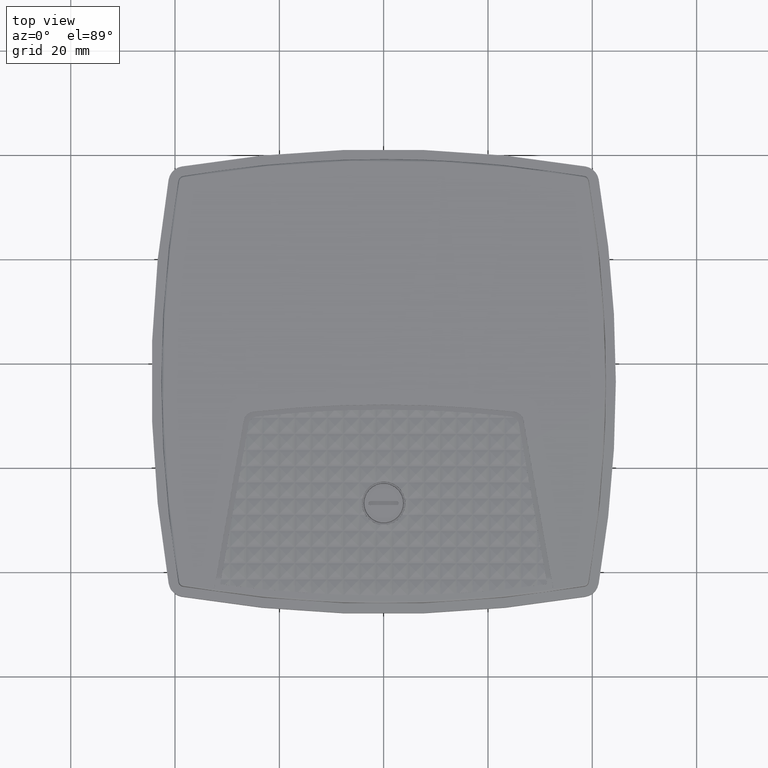
[diagram: clean part render]
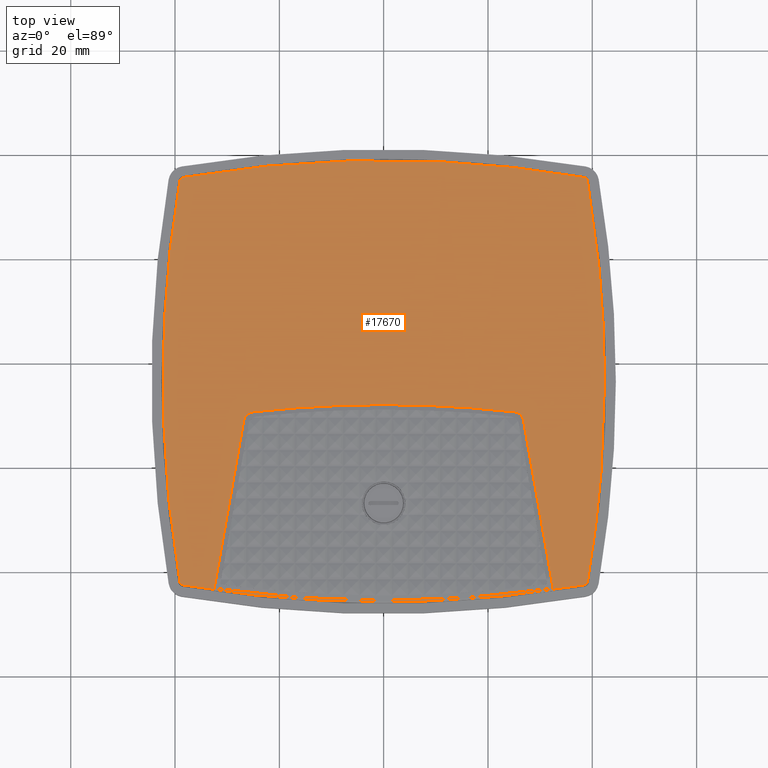
[diagram: same view with one face highlighted and labeled with its STEP entity id]
A machine part, top view. The second image highlights one B-rep face of the part: STEP entity #17670.
In plain terms, the highlighted planar face has unit normal (0, 0, 1).
Its self-contained STEP definition (entity closure, byte-faithful):
#5 = CARTESIAN_POINT ( 'NONE',  ( -1.538086690359461883, -0.9002733711386193827, 0.2480314960629921295 ) ) ;
#96 = DIRECTION ( 'NONE',  ( -0.000000000000000000, -0.000000000000000000, -1.000000000000000000 ) ) ;
#322 = EDGE_CURVE ( 'NONE', #19372, #24321, #20301, .T. ) ;
#395 = CARTESIAN_POINT ( 'NONE',  ( -1.513043256608206821, -0.9240426557318976997, 0.2480314960629921295 ) ) ;
#841 = CARTESIAN_POINT ( 'NONE',  ( 1.538262067971029712, -0.8987362376238721140, 0.2480314960629921295 ) ) ;
#869 = CARTESIAN_POINT ( 'NONE',  ( 1.524599566063387091, 2.148031616365099872, 0.2480314960629921295 ) ) ;
#1189 = CARTESIAN_POINT ( 'NONE',  ( 1.538262067971029712, -0.8987362376238721140, 0.2480314960629921295 ) ) ;
#1229 = CARTESIAN_POINT ( 'NONE',  ( -1.538349674716228410, -0.8987362376238681172, 0.2480314960629921295 ) ) ;
#1265 = CARTESIAN_POINT ( 'NONE',  ( -1.534662256077697240, 2.137515383095199617, 0.2480314960629921572 ) ) ;
#1558 = CARTESIAN_POINT ( 'NONE',  ( -1.514580390122972187, 2.152306102598596560, 0.2480314960629921295 ) ) ;
#1850 = EDGE_CURVE ( 'NONE', #24321, #19536, #27933, .T. ) ;
#1869 = LINE ( 'NONE', #27387, #7575 ) ;
#2088 = CARTESIAN_POINT ( 'NONE',  ( -1.279343536321206898, -0.9494611592462400829, 0.2480314960629921295 ) ) ;
#2423 = CARTESIAN_POINT ( 'NONE',  ( -1.523295970856013426, -0.9203552370934051652, 0.2480314960629921295 ) ) ;
#2563 = ORIENTED_EDGE ( 'NONE', *, *, #26536, .T. ) ;
#2740 = CARTESIAN_POINT ( 'NONE',  ( -1.516131443179829841, -0.9235143055584615901, 0.2480314960629921295 ) ) ;
#2872 = DIRECTION ( 'NONE',  ( 8.881780635371550939E-16, 1.000000000000000000, -3.802492172072922362E-18 ) ) ;
#2888 = EDGE_CURVE ( 'NONE', #9966, #17729, #15155, .T. ) ;
#3073 = ORIENTED_EDGE ( 'NONE', *, *, #14389, .T. ) ;
#3130 = CARTESIAN_POINT ( 'NONE',  ( 1.533869064078970723, 2.138981890455603718, 0.2480314960629922127 ) ) ;
#3201 = ORIENTED_EDGE ( 'NONE', *, *, #16886, .F. ) ;
#3236 = CARTESIAN_POINT ( 'NONE',  ( 1.623822172103477568, 1.627167130059621547, 0.2480314960629921572 ) ) ;
#3415 = CARTESIAN_POINT ( 'NONE',  ( 1.536653383795710148, 2.133236102522862332, 0.2480314960629920740 ) ) ;
#3427 =( BOUNDED_CURVE ( )  B_SPLINE_CURVE ( 3, ( #1229, #19660, #28865, #17375 ),
 .UNSPECIFIED., .F., .F. ) 
 B_SPLINE_CURVE_WITH_KNOTS ( ( 4, 4 ),
 ( 0.000000000000000000, 1.000000000000000000 ),
 .UNSPECIFIED. ) 
 CURVE ( )  GEOMETRIC_REPRESENTATION_ITEM ( )  RATIONAL_B_SPLINE_CURVE ( ( 1.000000000000000000, 0.9904521230345616489, 0.9904521230345616489, 1.000000000000000000 ) ) 
 REPRESENTATION_ITEM ( '' )  );
#3707 = ORIENTED_EDGE ( 'NONE', *, *, #24017, .F. ) ;
#3875 = CARTESIAN_POINT ( 'NONE',  ( 1.279255929576003981, -0.9494611592462420813, 0.2480314960629921295 ) ) ;
#4276 = CARTESIAN_POINT ( 'NONE',  ( 1.512955649863009899, -0.9240426557318976997, 0.2480314960629921295 ) ) ;
#4356 = CARTESIAN_POINT ( 'NONE',  ( 1.538262067971029712, 2.127262668847338389, 0.2480314960629921295 ) ) ;
#4579 = CARTESIAN_POINT ( 'NONE',  ( 1.538262067971029712, -0.8987362376238721140, 0.2480314960629921295 ) ) ;
#4696 = CARTESIAN_POINT ( 'NONE',  ( -1.537712356653046175, -0.9017754845766758898, 0.2480314960629921017 ) ) ;
#4839 = CARTESIAN_POINT ( 'NONE',  ( -1.524687172808461444, -0.9195051851417579414, 0.2480314960629921572 ) ) ;
#5192 = VERTEX_POINT ( 'NONE', #4356 ) ;
#5213 = VERTEX_POINT ( 'NONE', #16593 ) ;
#5690 = CARTESIAN_POINT ( 'NONE',  ( 1.531944591615174378, 2.141626866612784674, 0.2480314960629921295 ) ) ;
#5774 = EDGE_CURVE ( 'NONE', #19536, #26515, #10657, .T. ) ;
#6014 = CARTESIAN_POINT ( 'NONE',  ( 1.666756223750262889, 0.6142632156117342479, 0.2480314960629921295 ) ) ;
#6184 = CARTESIAN_POINT ( 'NONE',  ( -0.5092386845278162877, 2.324307519023802726, 0.2480314960629921295 ) ) ;
#6568 = ORIENTED_EDGE ( 'NONE', *, *, #5774, .T. ) ;
#6629 = DIRECTION ( 'NONE',  ( 0.000000000000000000, 0.000000000000000000, 1.000000000000000000 ) ) ;
#6694 = CARTESIAN_POINT ( 'NONE',  ( -1.538349674716226412, 2.127262668847342830, 0.2480314960629921295 ) ) ;
#6793 = CARTESIAN_POINT ( 'NONE',  ( -4.380337259962101829E-05, -8.543217099348899168, 0.2480314960629736165 ) ) ;
#7118 = CARTESIAN_POINT ( 'NONE',  ( -1.536740990540908625, -0.9047096712993929479, 0.2480314960629920740 ) ) ;
#7216 = AXIS2_PLACEMENT_3D ( 'NONE', #21124, #14002, #9940 ) ;
#7480 = CIRCLE ( 'NONE', #24338, 0.07887758846900577714 ) ;
#7575 = VECTOR ( 'NONE', #23163, 39.37007874015748143 ) ;
#7761 = CARTESIAN_POINT ( 'NONE',  ( 1.666756223750262889, 0.6142632156117342479, 0.2480314960629921295 ) ) ;
#7913 = CARTESIAN_POINT ( 'NONE',  ( -1.527407454373561402, 2.146251610599575255, 0.2480314960629921017 ) ) ;
#8068 = CARTESIAN_POINT ( 'NONE',  ( -1.533812204126027590, 2.138906585047674280, 0.2480314960629921572 ) ) ;
#8202 = CARTESIAN_POINT ( 'NONE',  ( -1.530878390023239000, 2.142785430268938196, 0.2480314960629920740 ) ) ;
#8343 = VECTOR ( 'NONE', #26562, 39.37007874015748854 ) ;
#8631 =( BOUNDED_CURVE ( )  B_SPLINE_CURVE ( 3, ( #4579, #11534, #24813, #4276 ),
 .UNSPECIFIED., .F., .F. ) 
 B_SPLINE_CURVE_WITH_KNOTS ( ( 4, 4 ),
 ( 0.000000000000000000, 1.000000000000000000 ),
 .UNSPECIFIED. ) 
 CURVE ( )  GEOMETRIC_REPRESENTATION_ITEM ( )  RATIONAL_B_SPLINE_CURVE ( ( 1.000000000000000000, 0.8774828397883003284, 0.8774828397883003284, 1.000000000000000000 ) ) 
 REPRESENTATION_ITEM ( '' )  );
#8903 = AXIS2_PLACEMENT_3D ( 'NONE', #22754, #96, #27287 ) ;
#9047 = CARTESIAN_POINT ( 'NONE',  ( -1.513043256608202602, 2.152569086955362199, 0.2480314960629921295 ) ) ;
#9727 = ORIENTED_EDGE ( 'NONE', *, *, #1850, .T. ) ;
#9940 = DIRECTION ( 'NONE',  ( 0.000000000000000000, 1.000000000000000000, -3.802492172072922362E-18 ) ) ;
#9966 = VERTEX_POINT ( 'NONE', #18171 ) ;
#10042 =( BOUNDED_CURVE ( )  B_SPLINE_CURVE ( 3, ( #15802, #18219, #25017, #15494 ),
 .UNSPECIFIED., .F., .F. ) 
 B_SPLINE_CURVE_WITH_KNOTS ( ( 4, 4 ),
 ( 0.000000000000000000, 1.000000000000000000 ),
 .UNSPECIFIED. ) 
 CURVE ( )  GEOMETRIC_REPRESENTATION_ITEM ( )  RATIONAL_B_SPLINE_CURVE ( ( 1.000000000000000000, 0.9904521230345613159, 0.9904521230345613159, 1.000000000000000000 ) ) 
 REPRESENTATION_ITEM ( '' )  );
#10093 = CARTESIAN_POINT ( 'NONE',  ( 1.512955649863008123, 2.152569086955362199, 0.2480314960629921295 ) ) ;
#10227 = CARTESIAN_POINT ( 'NONE',  ( 1.538262067971029712, 2.127262668847338389, 0.2480314960629921295 ) ) ;
#10331 = CARTESIAN_POINT ( 'NONE',  ( -1.532460394548966098, 2.140934435849155548, 0.2480314960629921572 ) ) ;
#10657 = CIRCLE ( 'NONE', #19353, 0.07887758846902900856 ) ;
#10663 = CARTESIAN_POINT ( 'NONE',  ( 1.537999083614262519, 2.128799802362089988, 0.2480314960629921572 ) ) ;
#10834 = ORIENTED_EDGE ( 'NONE', *, *, #2888, .F. ) ;
#10863 = LINE ( 'NONE', #17348, #8343 ) ;
#11023 = CARTESIAN_POINT ( 'NONE',  ( 0.5091510777826508960, 2.324307519023800950, 0.2480314960629921295 ) ) ;
#11166 = CARTESIAN_POINT ( 'NONE',  ( 1.512955649863008123, 2.152569086955362199, 0.2480314960629921295 ) ) ;
#11199 = VERTEX_POINT ( 'NONE', #25167 ) ;
#11514 = B_SPLINE_CURVE_WITH_KNOTS ( 'NONE', 3,
 ( #18883, #5, #4696, #7118, #16173, #25388, #13904, #23127, #16323, #4839, #2423, #11634, #23420, #2740, #20851 ),
 .UNSPECIFIED., .F., .F.,
 ( 4, 2, 2, 2, 1, 2, 2, 4 ),
 ( 0.000000000000000000, 0.1249999999999853451, 0.2499999999999706901, 0.4999999999999507061, 0.6249999999999407141, 0.6874999999999473754, 0.7499999999999540368, 1.000000000000000000 ),
 .UNSPECIFIED. ) ;
#11534 = CARTESIAN_POINT ( 'NONE',  ( 1.535969410056212459, -0.9121367355170318936, 0.2480314960629921017 ) ) ;
#11634 = CARTESIAN_POINT ( 'NONE',  ( -1.522540863494806773, -0.9207749618827687499, 0.2480314960629921295 ) ) ;
#11721 = PLANE ( 'NONE',  #23032 ) ;
#12348 = CARTESIAN_POINT ( 'NONE',  ( 1.528478411284638350, 2.145097802262328823, 0.2480314960629922127 ) ) ;
#12674 = CARTESIAN_POINT ( 'NONE',  ( 1.512955649863008123, 2.152569086955362199, 0.2480314960629921295 ) ) ;
#13103 = CARTESIAN_POINT ( 'NONE',  ( 1.055741121806415439, 0.3181543064727807013, 0.2480314960631925247 ) ) ;
#13117 = DIRECTION ( 'NONE',  ( 1.000000000000000000, 0.000000000000000000, 0.000000000000000000 ) ) ;
#13153 = ORIENTED_EDGE ( 'NONE', *, *, #29104, .T. ) ;
#13175 = ORIENTED_EDGE ( 'NONE', *, *, #29231, .F. ) ;
#13463 = ORIENTED_EDGE ( 'NONE', *, *, #16865, .T. ) ;
#13904 = CARTESIAN_POINT ( 'NONE',  ( -1.532032198360548714, -0.9131004353891424286, 0.2480314960629921295 ) ) ;
#14002 = DIRECTION ( 'NONE',  ( -1.156715737494070037E-34, -1.901246086036465033E-18, -1.000000000000000000 ) ) ;
#14389 = EDGE_CURVE ( 'NONE', #26515, #23348, #10863, .T. ) ;
#14437 = ORIENTED_EDGE ( 'NONE', *, *, #15621, .T. ) ;
#14895 = CARTESIAN_POINT ( 'NONE',  ( 1.522453256749547235, 2.149301393106243907, 0.2480314960629921572 ) ) ;
#14926 = CARTESIAN_POINT ( 'NONE',  ( 1.623822172103474903, -0.3986406988361665960, 0.2480314960629921295 ) ) ;
#15155 =( BOUNDED_CURVE ( )  B_SPLINE_CURVE ( 3, ( #6014, #22483, #14926, #1189 ),
 .UNSPECIFIED., .F., .F. ) 
 B_SPLINE_CURVE_WITH_KNOTS ( ( 4, 4 ),
 ( 0.4999999999999976685, 1.000000000000000000 ),
 .UNSPECIFIED. ) 
 CURVE ( )  GEOMETRIC_REPRESENTATION_ITEM ( )  RATIONAL_B_SPLINE_CURVE ( ( 1.000000000000000000, 0.9976087421731444360, 0.9976087421731444360, 1.000000000000000000 ) ) 
 REPRESENTATION_ITEM ( '' )  );
#15446 = CARTESIAN_POINT ( 'NONE',  ( -1.524762478216448613, 2.148176083063306319, 0.2480314960629921295 ) ) ;
#15494 = CARTESIAN_POINT ( 'NONE',  ( -1.513043256608206821, -0.9240426557318976997, 0.2480314960629921295 ) ) ;
#15621 = EDGE_CURVE ( 'NONE', #27731, #23199, #23801, .T. ) ;
#15802 = CARTESIAN_POINT ( 'NONE',  ( 1.512955649863009899, -0.9240426557318976997, 0.2480314960629921295 ) ) ;
#16173 = CARTESIAN_POINT ( 'NONE',  ( -1.536175029157633487, -0.9060804670719556642, 0.2480314960629922127 ) ) ;
#16323 = CARTESIAN_POINT ( 'NONE',  ( -1.526715023609920507, -0.9181533755647139916, 0.2480314960629921295 ) ) ;
#16593 = CARTESIAN_POINT ( 'NONE',  ( 1.512955649863009899, -0.9240426557318976997, 0.2480314960629921295 ) ) ;
#16865 = EDGE_CURVE ( 'NONE', #28860, #22704, #1869, .T. ) ;
#16886 = EDGE_CURVE ( 'NONE', #17729, #5213, #8631, .T. ) ;
#16924 =( BOUNDED_CURVE ( )  B_SPLINE_CURVE ( 3, ( #18110, #6184, #11023, #11166 ),
 .UNSPECIFIED., .F., .F. ) 
 B_SPLINE_CURVE_WITH_KNOTS ( ( 4, 4 ),
 ( 0.000000000000000000, 1.000000000000000000 ),
 .UNSPECIFIED. ) 
 CURVE ( )  GEOMETRIC_REPRESENTATION_ITEM ( )  RATIONAL_B_SPLINE_CURVE ( ( 1.000000000000000000, 0.9904521230345617600, 0.9904521230345617600, 1.000000000000000000 ) ) 
 REPRESENTATION_ITEM ( '' )  );
#17187 = EDGE_CURVE ( 'NONE', #11199, #23199, #3427, .T. ) ;
#17348 = CARTESIAN_POINT ( 'NONE',  ( 1.055741121806413441, 0.3181543064727807013, 0.2480314960629921295 ) ) ;
#17375 = CARTESIAN_POINT ( 'NONE',  ( -1.538349674716226412, 2.127262668847342830, 0.2480314960629921295 ) ) ;
#17407 = CARTESIAN_POINT ( 'NONE',  ( -1.536849958430643870, 2.133285042141778387, 0.2480314960629922405 ) ) ;
#17670 = ADVANCED_FACE ( 'NONE', ( #29285, #27319 ), #11721, .T. ) ;
#17729 = VERTEX_POINT ( 'NONE', #841 ) ;
#17799 = CARTESIAN_POINT ( 'NONE',  ( -3.652602858490708648, 4.266822270729842437, 0.2480314960629921295 ) ) ;
#17961 = DIRECTION ( 'NONE',  ( -1.156715737494070037E-34, -1.901246086036465033E-18, -1.000000000000000000 ) ) ;
#18110 = CARTESIAN_POINT ( 'NONE',  ( -1.513043256608202602, 2.152569086955362199, 0.2480314960629921295 ) ) ;
#18171 = CARTESIAN_POINT ( 'NONE',  ( 1.666756223750262889, 0.6142632156117342479, 0.2480314960629921295 ) ) ;
#18219 = CARTESIAN_POINT ( 'NONE',  ( 0.5091510777826538936, -1.095781087800348441, 0.2480314960629921295 ) ) ;
#18883 = CARTESIAN_POINT ( 'NONE',  ( -1.538349674716228410, -0.8987362376238681172, 0.2480314960629921295 ) ) ;
#19353 = AXIS2_PLACEMENT_3D ( 'NONE', #28468, #19706, #28909 ) ;
#19372 = VERTEX_POINT ( 'NONE', #29375 ) ;
#19441 = CARTESIAN_POINT ( 'NONE',  ( -1.538349674716226412, 2.127262668847342830, 0.2480314960629921295 ) ) ;
#19536 = VERTEX_POINT ( 'NONE', #25907 ) ;
#19626 = EDGE_CURVE ( 'NONE', #5192, #9966, #28483, .T. ) ;
#19660 = CARTESIAN_POINT ( 'NONE',  ( -1.710088106784674267, 0.1050683344565000593, 0.2480314960629921017 ) ) ;
#19692 = CARTESIAN_POINT ( 'NONE',  ( -1.535081980867103013, 2.136760275733919912, 0.2480314960629921295 ) ) ;
#19706 = DIRECTION ( 'NONE',  ( -0.000000000000000000, -0.000000000000000000, -1.000000000000000000 ) ) ;
#19733 = CARTESIAN_POINT ( 'NONE',  ( 1.526627416864879683, 2.146679806788021949, 0.2480314960629921017 ) ) ;
#19931 = EDGE_LOOP ( 'NONE', ( #6568, #3073, #29653, #13463, #2563, #23718, #9727 ) ) ;
#20301 = CIRCLE ( 'NONE', #29459, 8.980452391618602093 ) ;
#20851 = CARTESIAN_POINT ( 'NONE',  ( -1.513043256608206821, -0.9240426557318976997, 0.2480314960629921295 ) ) ;
#21124 = CARTESIAN_POINT ( 'NONE',  ( -4.380337259962101829E-05, -8.543217099348899168, 0.2480314960629736165 ) ) ;
#21425 = CARTESIAN_POINT ( 'NONE',  ( -4.380337259962101829E-05, 0.4372352922697042565, 0.2480314960629736165 ) ) ;
#21428 = EDGE_CURVE ( 'NONE', #11199, #29307, #11514, .T. ) ;
#21564 = CARTESIAN_POINT ( 'NONE',  ( 1.516043836434881831, 2.152040736781888342, 0.2480314960629921572 ) ) ;
#21806 = CARTESIAN_POINT ( 'NONE',  ( -1.520387486056307358, 2.150394441396770606, 0.2480314960629921572 ) ) ;
#22245 = CARTESIAN_POINT ( 'NONE',  ( -1.513043256608202602, 2.152569086955362199, 0.2480314960629921295 ) ) ;
#22317 = CARTESIAN_POINT ( 'NONE',  ( -0.9781494678882873828, 0.3044573569763520116, 0.2480314960633933086 ) ) ;
#22483 = CARTESIAN_POINT ( 'NONE',  ( 1.666756223750258448, 0.1069013335842011053, 0.2480314960629921295 ) ) ;
#22704 = VERTEX_POINT ( 'NONE', #27946 ) ;
#22724 = VERTEX_POINT ( 'NONE', #12674 ) ;
#22754 = CARTESIAN_POINT ( 'NONE',  ( -4.380337259826299408E-05, 7.919381325847953512, 0.2480314960629921295 ) ) ;
#23032 = AXIS2_PLACEMENT_3D ( 'NONE', #17799, #6629, #13117 ) ;
#23127 = CARTESIAN_POINT ( 'NONE',  ( -1.528566018029745788, -0.9165713710389532531, 0.2480314960629922127 ) ) ;
#23163 = DIRECTION ( 'NONE',  ( 0.1736481776669319688, 0.9848077530122077983, 0.000000000000000000 ) ) ;
#23199 = VERTEX_POINT ( 'NONE', #19441 ) ;
#23348 = VERTEX_POINT ( 'NONE', #3875 ) ;
#23420 = CARTESIAN_POINT ( 'NONE',  ( -1.519065629902546455, -0.9225429394463251498, 0.2480314960629921572 ) ) ;
#23444 = EDGE_CURVE ( 'NONE', #23348, #28860, #28200, .T. ) ;
#23718 = ORIENTED_EDGE ( 'NONE', *, *, #322, .T. ) ;
#23787 = B_SPLINE_CURVE_WITH_KNOTS ( 'NONE', 3,
 ( #10227, #10663, #28496, #3415, #23821, #3130, #5690, #12348, #19733, #869, #28936, #14895, #24116, #21564, #10093 ),
 .UNSPECIFIED., .F., .F.,
 ( 4, 2, 2, 2, 1, 2, 2, 4 ),
 ( 0.000000000000000000, 0.1249999999999932554, 0.2499999999999865108, 0.4999999999999916733, 0.6249999999999942268, 0.6874999999999870104, 0.7499999999999796829, 1.000000000000000000 ),
 .UNSPECIFIED. ) ;
#23801 = B_SPLINE_CURVE_WITH_KNOTS ( 'NONE', 3,
 ( #22245, #1558, #26486, #28597, #21806, #15446, #7913, #8202, #10331, #8068, #1265, #19692, #17407, #25268, #6694 ),
 .UNSPECIFIED., .F., .F.,
 ( 4, 2, 2, 2, 1, 2, 2, 4 ),
 ( 0.000000000000000000, 0.1249999999999983069, 0.2499999999999966138, 0.5000000000000213163, 0.6250000000000337508, 0.6875000000000313083, 0.7500000000000288658, 1.000000000000000000 ),
 .UNSPECIFIED. ) ;
#23821 = CARTESIAN_POINT ( 'NONE',  ( 1.536087422412435455, 2.134606898295430710, 0.2480314960629921295 ) ) ;
#23964 = EDGE_LOOP ( 'NONE', ( #24159, #26295, #13175, #3201, #10834, #28331, #13153, #3707, #14437 ) ) ;
#24017 = EDGE_CURVE ( 'NONE', #27731, #22724, #16924, .T. ) ;
#24116 = CARTESIAN_POINT ( 'NONE',  ( 1.518978023157598223, 2.151069370669750125, 0.2480314960629921017 ) ) ;
#24159 = ORIENTED_EDGE ( 'NONE', *, *, #17187, .F. ) ;
#24321 = VERTEX_POINT ( 'NONE', #21425 ) ;
#24338 = AXIS2_PLACEMENT_3D ( 'NONE', #22317, #27302, #29719 ) ;
#24813 = CARTESIAN_POINT ( 'NONE',  ( 1.526356147756168902, -0.9217499978170761166, 0.2480314960629921017 ) ) ;
#25017 = CARTESIAN_POINT ( 'NONE',  ( -0.5092386845278454865, -1.095781087800349107, 0.2480314960629921295 ) ) ;
#25167 = CARTESIAN_POINT ( 'NONE',  ( -1.538349674716228410, -0.8987362376238681172, 0.2480314960629921295 ) ) ;
#25268 = CARTESIAN_POINT ( 'NONE',  ( -1.537821324542781420, 2.130350855419061773, 0.2480314960629922127 ) ) ;
#25388 = CARTESIAN_POINT ( 'NONE',  ( -1.533956670824168089, -0.9104554592321372208, 0.2480314960629921572 ) ) ;
#25907 = CARTESIAN_POINT ( 'NONE',  ( 0.9867289361035375128, 0.3828573300268542923, 0.2480314960631850307 ) ) ;
#26295 = ORIENTED_EDGE ( 'NONE', *, *, #21428, .T. ) ;
#26486 = CARTESIAN_POINT ( 'NONE',  ( -1.516082503561035244, 2.151931768892179964, 0.2480314960629921295 ) ) ;
#26515 = VERTEX_POINT ( 'NONE', #13103 ) ;
#26536 = EDGE_CURVE ( 'NONE', #22704, #19372, #7480, .T. ) ;
#26562 = DIRECTION ( 'NONE',  ( 0.1736481776669309696, -0.9848077530122077983, 0.000000000000000000 ) ) ;
#27287 = DIRECTION ( 'NONE',  ( 1.000000000000000000, 0.000000000000000000, 0.000000000000000000 ) ) ;
#27302 = DIRECTION ( 'NONE',  ( -0.000000000000000000, -0.000000000000000000, -1.000000000000000000 ) ) ;
#27319 = FACE_OUTER_BOUND ( 'NONE', #23964, .T. ) ;
#27387 = CARTESIAN_POINT ( 'NONE',  ( -1.279343536321204899, -0.9494611592462323113, 0.2480314960629921295 ) ) ;
#27731 = VERTEX_POINT ( 'NONE', #9047 ) ;
#27933 = CIRCLE ( 'NONE', #7216, 8.980452391618602093 ) ;
#27946 = CARTESIAN_POINT ( 'NONE',  ( -1.055828728551545304, 0.3181543064727751502, 0.2480314960610551234 ) ) ;
#28200 = CIRCLE ( 'NONE', #8903, 8.960634733774959670 ) ;
#28331 = ORIENTED_EDGE ( 'NONE', *, *, #19626, .F. ) ;
#28450 = CARTESIAN_POINT ( 'NONE',  ( 1.538262067971029712, 2.127262668847338389, 0.2480314960629921295 ) ) ;
#28468 = CARTESIAN_POINT ( 'NONE',  ( 0.9780618611430944576, 0.3044573569763507903, 0.2480314960633933086 ) ) ;
#28483 =( BOUNDED_CURVE ( )  B_SPLINE_CURVE ( 3, ( #28450, #3236, #29035, #7761 ),
 .UNSPECIFIED., .F., .F. ) 
 B_SPLINE_CURVE_WITH_KNOTS ( ( 4, 4 ),
 ( 0.000000000000000000, 0.4999999999999976685 ),
 .UNSPECIFIED. ) 
 CURVE ( )  GEOMETRIC_REPRESENTATION_ITEM ( )  RATIONAL_B_SPLINE_CURVE ( ( 1.000000000000000000, 0.9976087421731445470, 0.9976087421731445470, 1.000000000000000000 ) ) 
 REPRESENTATION_ITEM ( '' )  );
#28496 = CARTESIAN_POINT ( 'NONE',  ( 1.537624749907847255, 2.130301915800145274, 0.2480314960629921295 ) ) ;
#28597 = CARTESIAN_POINT ( 'NONE',  ( -1.519016690283751414, 2.150960402780042191, 0.2480314960629921017 ) ) ;
#28860 = VERTEX_POINT ( 'NONE', #2088 ) ;
#28865 = CARTESIAN_POINT ( 'NONE',  ( -1.710088106784673156, 1.123458096766982273, 0.2480314960629921017 ) ) ;
#28909 = DIRECTION ( 'NONE',  ( 1.000000000000000000, -3.463402021648916373E-15, 0.000000000000000000 ) ) ;
#28936 = CARTESIAN_POINT ( 'NONE',  ( 1.523208364110895108, 2.148881668316791949, 0.2480314960629921572 ) ) ;
#29035 = CARTESIAN_POINT ( 'NONE',  ( 1.666756223750258892, 1.121625097639263657, 0.2480314960629921572 ) ) ;
#29104 = EDGE_CURVE ( 'NONE', #5192, #22724, #23787, .T. ) ;
#29231 = EDGE_CURVE ( 'NONE', #5213, #29307, #10042, .T. ) ;
#29285 = FACE_BOUND ( 'NONE', #19931, .T. ) ;
#29307 = VERTEX_POINT ( 'NONE', #395 ) ;
#29375 = CARTESIAN_POINT ( 'NONE',  ( -0.9868165428487284396, 0.3828573300268141577, 0.2480314960631850307 ) ) ;
#29459 = AXIS2_PLACEMENT_3D ( 'NONE', #6793, #17961, #2872 ) ;
#29653 = ORIENTED_EDGE ( 'NONE', *, *, #23444, .T. ) ;
#29719 = DIRECTION ( 'NONE',  ( 1.000000000000000000, 0.000000000000000000, 0.000000000000000000 ) ) ;